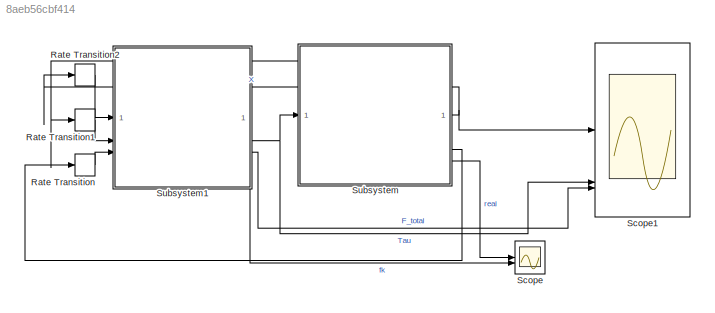
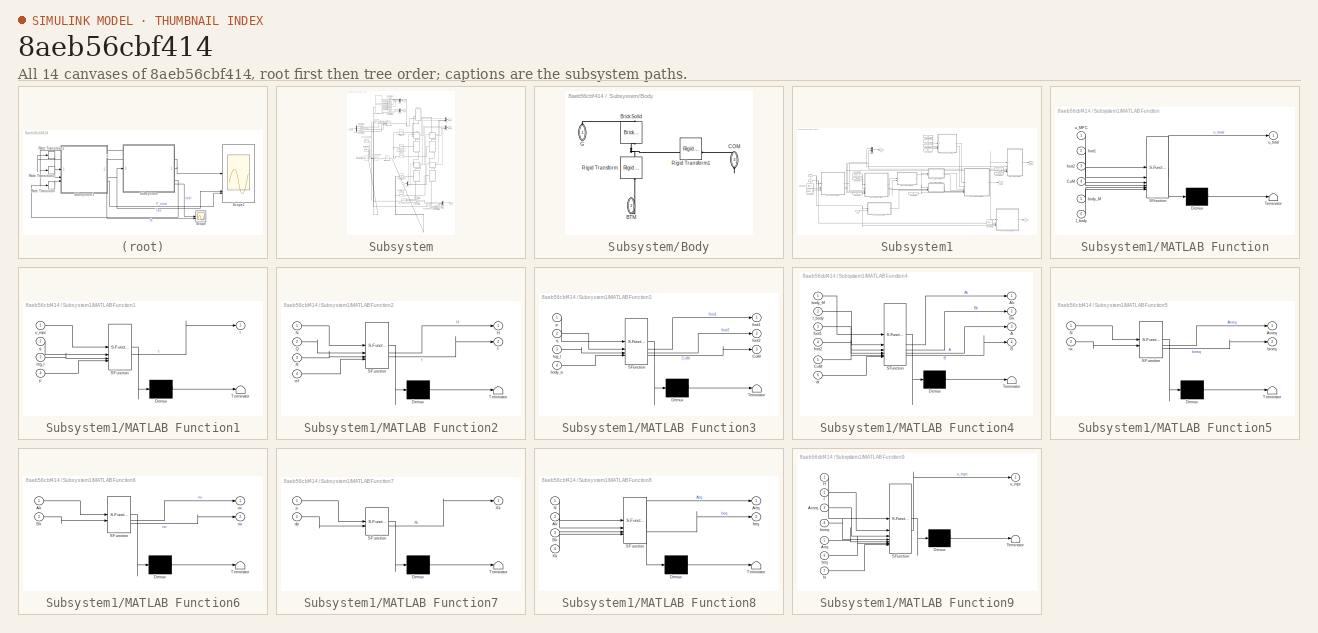
[diagram: thumbnail index - all 14 canvases of the model, root first then tree order]
MODEL slx_8aeb56cbf414
KIND model
CONFIG AbsTol = 1e-3
CONFIG EnableMultiTasking = on
CONFIG FixedStep = 0.04
CONFIG MaxStep = auto
CONFIG MinStep = auto
CONFIG RelTol = 1e-3
CONFIG SampleTimeConstraint = Unconstrained
CONFIG SolverName = VariableStepAuto
CONFIG StartTime = 0.0
CONFIG StopTime = 2
BLOCK [RateTransition] Rate Transition
  OutPortSampleTime = dt
BLOCK [RateTransition] Rate Transition1
  OutPortSampleTime = dt
BLOCK [RateTransition] Rate Transition2
  OutPortSampleTime = dt
BLOCK [Scope] Scope
  Floating = off
  NumInputPorts = 2
  ScopeSpecificationString = Simulink.scopes.TimeScopeBlockCfg('CurrentConfiguration', extmgr.ConfigurationSet(extmgr.Configuration('Core','General UI',true),extmgr.Configuration('Core','Source UI',true),extmgr.Configuration('Sources','WiredSimulink',true,'DataLoggingVariableName','ScopeData1'),extmgr.Configuration('Visuals','Time Domain',true,'SerializedDisplays',{struct('MinYLimReal','-0.02335','MaxYLimReal','0.20561','YLab...<+2210ch>
BLOCK [Scope] Scope1
  Floating = off
  NumInputPorts = 5
  ScopeSpecificationString = Simulink.scopes.TimeScopeBlockCfg('CurrentConfiguration', extmgr.ConfigurationSet(extmgr.Configuration('Core','General UI',true),extmgr.Configuration('Core','Source UI',true),extmgr.Configuration('Sources','WiredSimulink',true,'DataLoggingVariableName','ScopeData1'),extmgr.Configuration('Visuals','Time Domain',true,'SerializedDisplays',{struct('MinYLimReal','-0.06936','MaxYLimReal','0.62351','YLab...<+5929ch>
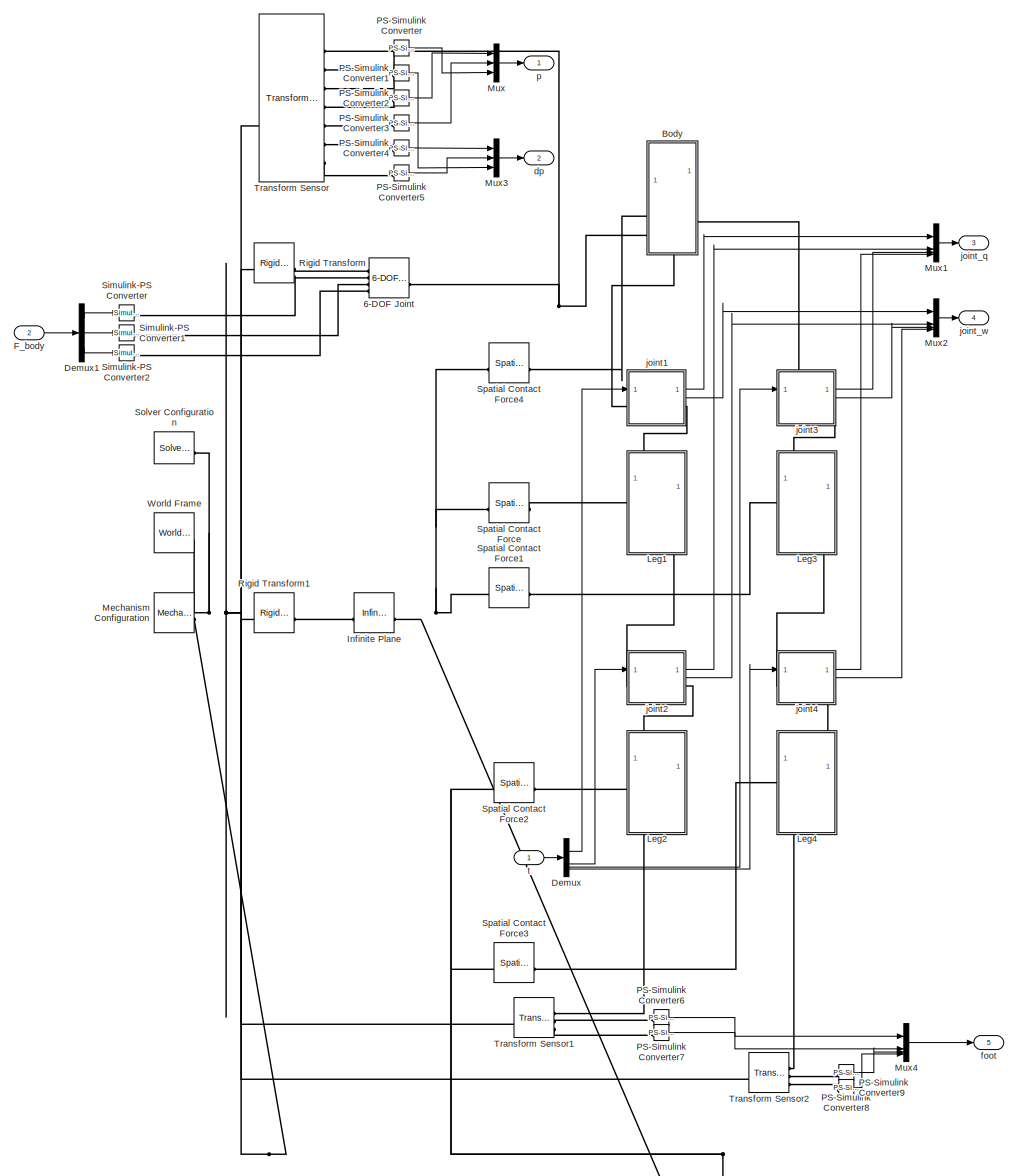
[diagram: Subsystem - part 1/1, most of the canvas]
BLOCK [SubSystem] Subsystem
BLOCK [Reference] Subsystem/6-DOF Joint  REF=sm_lib/Joints/6-DOF Joint
  SourceBlock = sm_lib/Joints/6-DOF Joint
  SourceType = 6-DOF Joint
BLOCK [SubSystem] Subsystem/Body
  PortSchema = {"entries":[{"content":{"sides":[{"content":{"connectorIds":["LConn1"]},"type":"ConnectorPlacement.EquallySpacedRectSide","uuid":"ef732868-a6ed-4fe4-817e-f9b9b43bcca9"},{"content":{"side":"RIGHT"},"type":"ConnectorPlacement.EquallySpacedRectSide","uuid":"7258e0b6-9c16-4231-a684-803b12dc5dbb"},{"content":{"side":"TOP"},"type":"ConnectorPlacement.EquallySpacedRectSide","uuid":"2620e2ed-2a50-4d1a-a22...<+362ch>
BLOCK [PMIOPort] Subsystem/Body/BTM
  NameLocation = left
  Port = 2
  Side = Right
BLOCK [Reference] Subsystem/Body/Brick Solid  REF=sm_lib/Body Elements/Brick Solid
  NameLocation = top
  SourceBlock = sm_lib/Body Elements/Brick Solid
  SourceType = Brick Solid
BLOCK [PMIOPort] Subsystem/Body/COM
  NameLocation = left
  Port = 3
  Side = Right
BLOCK [PMIOPort] Subsystem/Body/G
  NameLocation = left
  Side = Left
BLOCK [Reference] Subsystem/Body/Rigid Transform  REF=sm_lib/Frames and
Transforms/Rigid
Transform
  NameLocation = left
  SourceBlock = sm_lib/Frames and\nTransforms/Rigid\nTransform
  SourceType = Rigid\nTransform
BLOCK [Reference] Subsystem/Body/Rigid Transform1  REF=sm_lib/Frames and
Transforms/Rigid
Transform
  SourceBlock = sm_lib/Frames and\nTransforms/Rigid\nTransform
  SourceType = Rigid\nTransform
BLOCK [Demux] Subsystem/Demux
BLOCK [Demux] Subsystem/Demux1
  Outputs = 3
BLOCK [Inport] Subsystem/F_body
  Port = 2
BLOCK [Reference] Subsystem/Infinite Plane  REF=sm_lib/Curves and Surfaces/Infinite Plane
  SourceBlock = sm_lib/Curves and Surfaces/Infinite Plane
  SourceType = Infinite Plane
BLOCK [SubSystem] Subsystem/Leg1
  B = 0.76
  G = 0.41
  PortSchema = {"entries":[{"content":{"sides":[{"content":{"connectorIds":["LConn1"]},"type":"ConnectorPlacement.EquallySpacedRectSide","uuid":"488f091b-67f3-4641-8360-22ce5240ae7f"},{"content":{"side":"RIGHT"},"type":"ConnectorPlacement.EquallySpacedRectSide","uuid":"4ff6c1cd-91cf-49f0-96c7-c99ee0019842"},{"content":{"connectorIds":["LConn2"],"side":"TOP"},"type":"ConnectorPlacement.EquallySpacedRectSide","uui...<+379ch>  <repeated x4 — deduplicated; at blocks: Leg1, Leg2, Leg3, Leg4>
  R = 0.18
  ReferencedSubsystem = Leg
  l = leg_l
  m = leg_m
BLOCK [SubSystem] Subsystem/Leg2
  B = 0
  G = 0.28
  R = 0.82
  ReferencedSubsystem = Leg
  l = leg_l
  m = leg_m
BLOCK [SubSystem] Subsystem/Leg3
  B = 0.18
  G = 0.64
  R = 0.31
  ReferencedSubsystem = Leg
  l = leg_l
  m = leg_m
BLOCK [SubSystem] Subsystem/Leg4
  B = 0.27
  G = 0.84
  R = 1
  ReferencedSubsystem = Leg
  l = leg_l
  m = leg_m
BLOCK [Reference] Subsystem/Mechanism Configuration  REF=sm_lib/Utilities/Mechanism
Configuration
  SourceBlock = sm_lib/Utilities/Mechanism\nConfiguration
  SourceType = Mechanism\nConfiguration
BLOCK [Mux] Subsystem/Mux
  DisplayOption = bar
  Inputs = 3
BLOCK [Mux] Subsystem/Mux1
  DisplayOption = bar
BLOCK [Mux] Subsystem/Mux2
  DisplayOption = bar
BLOCK [Mux] Subsystem/Mux3
  DisplayOption = bar
  Inputs = 3
BLOCK [Mux] Subsystem/Mux4
  DisplayOption = bar
BLOCK [Reference] Subsystem/PS-Simulink Converter  REF=nesl_utility/PS-Simulink
Converter
  SourceBlock = nesl_utility/PS-Simulink\nConverter
  SourceType = PS-Simulink\nConverter
BLOCK [Reference] Subsystem/PS-Simulink Converter1  REF=nesl_utility/PS-Simulink
Converter
  SourceBlock = nesl_utility/PS-Simulink\nConverter
  SourceType = PS-Simulink\nConverter
BLOCK [Reference] Subsystem/PS-Simulink Converter2  REF=nesl_utility/PS-Simulink
Converter
  SourceBlock = nesl_utility/PS-Simulink\nConverter
  SourceType = PS-Simulink\nConverter
BLOCK [Reference] Subsystem/PS-Simulink Converter3  REF=nesl_utility/PS-Simulink
Converter
  SourceBlock = nesl_utility/PS-Simulink\nConverter
  SourceType = PS-Simulink\nConverter
BLOCK [Reference] Subsystem/PS-Simulink Converter4  REF=nesl_utility/PS-Simulink
Converter
  SourceBlock = nesl_utility/PS-Simulink\nConverter
  SourceType = PS-Simulink\nConverter
BLOCK [Reference] Subsystem/PS-Simulink Converter5  REF=nesl_utility/PS-Simulink
Converter
  SourceBlock = nesl_utility/PS-Simulink\nConverter
  SourceType = PS-Simulink\nConverter
BLOCK [Reference] Subsystem/PS-Simulink Converter6  REF=nesl_utility/PS-Simulink
Converter
  SourceBlock = nesl_utility/PS-Simulink\nConverter
  SourceType = PS-Simulink\nConverter
BLOCK [Reference] Subsystem/PS-Simulink Converter7  REF=nesl_utility/PS-Simulink
Converter
  SourceBlock = nesl_utility/PS-Simulink\nConverter
  SourceType = PS-Simulink\nConverter
BLOCK [Reference] Subsystem/PS-Simulink Converter8  REF=nesl_utility/PS-Simulink
Converter
  SourceBlock = nesl_utility/PS-Simulink\nConverter
  SourceType = PS-Simulink\nConverter
BLOCK [Reference] Subsystem/PS-Simulink Converter9  REF=nesl_utility/PS-Simulink
Converter
  SourceBlock = nesl_utility/PS-Simulink\nConverter
  SourceType = PS-Simulink\nConverter
BLOCK [Reference] Subsystem/Rigid Transform  REF=sm_lib/Frames and
Transforms/Rigid
Transform
  SourceBlock = sm_lib/Frames and\nTransforms/Rigid\nTransform
  SourceType = Rigid\nTransform
BLOCK [Reference] Subsystem/Rigid Transform1  REF=sm_lib/Frames and
Transforms/Rigid
Transform
  SourceBlock = sm_lib/Frames and\nTransforms/Rigid\nTransform
  SourceType = Rigid\nTransform
BLOCK [Reference] Subsystem/Simulink-PS Converter  REF=nesl_utility/Simulink-PS
Converter
  SourceBlock = nesl_utility/Simulink-PS\nConverter
  SourceType = Simulink-PS\nConverter
BLOCK [Reference] Subsystem/Simulink-PS Converter1  REF=nesl_utility/Simulink-PS
Converter
  SourceBlock = nesl_utility/Simulink-PS\nConverter
  SourceType = Simulink-PS\nConverter
BLOCK [Reference] Subsystem/Simulink-PS Converter2  REF=nesl_utility/Simulink-PS
Converter
  SourceBlock = nesl_utility/Simulink-PS\nConverter
  SourceType = Simulink-PS\nConverter
BLOCK [Reference] Subsystem/Solver Configuration  REF=nesl_utility/Solver
Configuration
  SourceBlock = nesl_utility/Solver\nConfiguration
  SourceType = Solver\nConfiguration
BLOCK [Reference] Subsystem/Spatial Contact Force  REF=sm_lib/Forces and
Torques/Spatial
Contact Force
  SourceBlock = sm_lib/Forces and\nTorques/Spatial\nContact Force
  SourceType = Spatial\nContact Force
BLOCK [Reference] Subsystem/Spatial Contact Force1  REF=sm_lib/Forces and
Torques/Spatial
Contact Force
  SourceBlock = sm_lib/Forces and\nTorques/Spatial\nContact Force
  SourceType = Spatial\nContact Force
BLOCK [Reference] Subsystem/Spatial Contact Force2  REF=sm_lib/Forces and
Torques/Spatial
Contact Force
  SourceBlock = sm_lib/Forces and\nTorques/Spatial\nContact Force
  SourceType = Spatial\nContact Force
BLOCK [Reference] Subsystem/Spatial Contact Force3  REF=sm_lib/Forces and
Torques/Spatial
Contact Force
  SourceBlock = sm_lib/Forces and\nTorques/Spatial\nContact Force
  SourceType = Spatial\nContact Force
BLOCK [Reference] Subsystem/Spatial Contact Force4  REF=sm_lib/Forces and
Torques/Spatial
Contact Force
  SourceBlock = sm_lib/Forces and\nTorques/Spatial\nContact Force
  SourceType = Spatial\nContact Force
BLOCK [Reference] Subsystem/Transform Sensor  REF=sm_lib/Frames and
Transforms/Transform
Sensor
  SourceBlock = sm_lib/Frames and\nTransforms/Transform\nSensor
  SourceType = Transform\nSensor
BLOCK [Reference] Subsystem/Transform Sensor1  REF=sm_lib/Frames and
Transforms/Transform
Sensor
  SourceBlock = sm_lib/Frames and\nTransforms/Transform\nSensor
  SourceType = Transform\nSensor
BLOCK [Reference] Subsystem/Transform Sensor2  REF=sm_lib/Frames and
Transforms/Transform
Sensor
  SourceBlock = sm_lib/Frames and\nTransforms/Transform\nSensor
  SourceType = Transform\nSensor
BLOCK [Reference] Subsystem/World Frame  REF=sm_lib/Frames and
Transforms/World Frame
  SourceBlock = sm_lib/Frames and\nTransforms/World Frame
  SourceType = World Frame
BLOCK [Outport] Subsystem/dp
  Port = 2
BLOCK [Outport] Subsystem/foot
  Port = 5
BLOCK [SubSystem] Subsystem/joint1
  ReferencedSubsystem = hip
  q0 = q0(1)
BLOCK [SubSystem] Subsystem/joint2
  ReferencedSubsystem = knee
  q0 = q0(2)
BLOCK [SubSystem] Subsystem/joint3
  ReferencedSubsystem = hip
  q0 = q0(3)
BLOCK [SubSystem] Subsystem/joint4
  ReferencedSubsystem = knee
  q0 = q0(4)
BLOCK [Outport] Subsystem/joint_q
  Port = 3
BLOCK [Outport] Subsystem/joint_w
  Port = 4
BLOCK [Outport] Subsystem/p
BLOCK [Inport] Subsystem/t
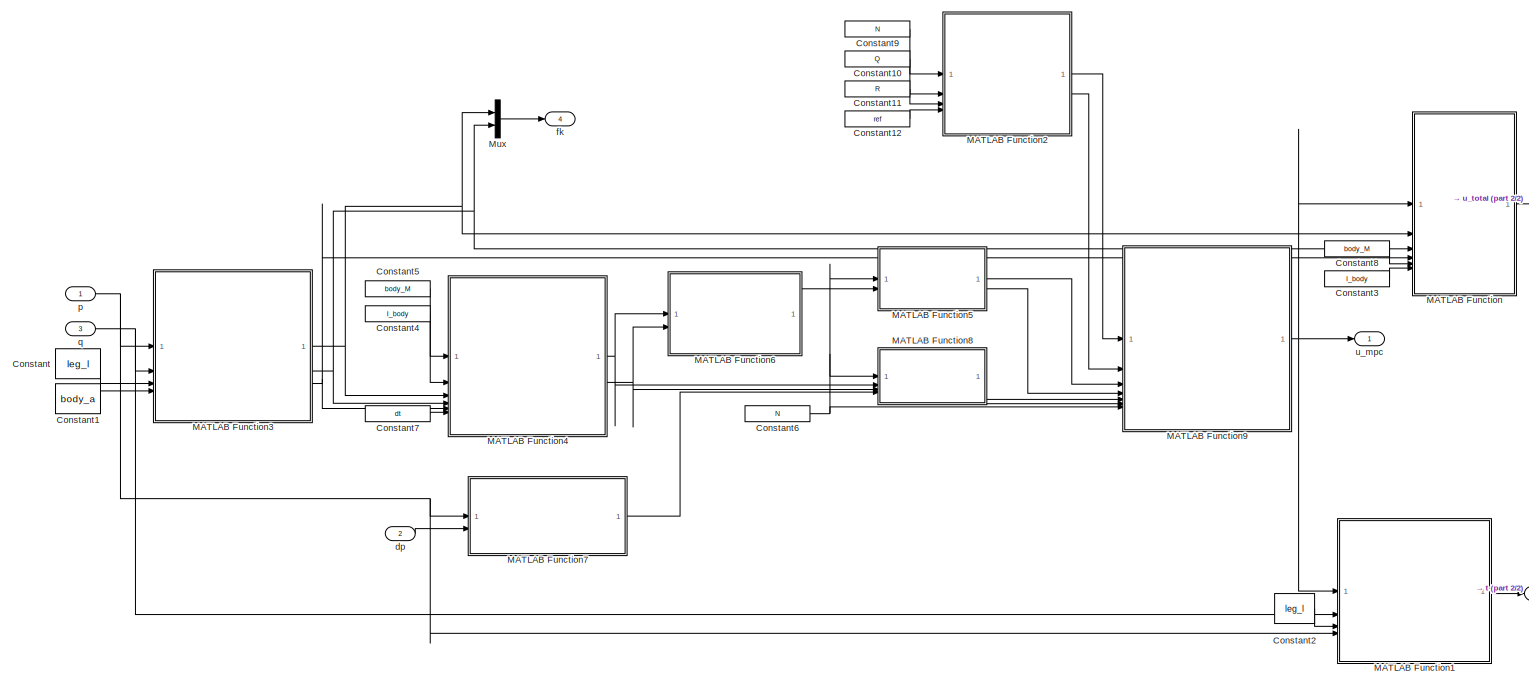
[diagram: Subsystem1 - part 1/2, most of the canvas]
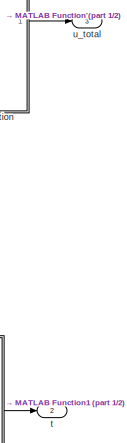
[diagram: Subsystem1 - part 2/2, middle right region]
BLOCK [SubSystem] Subsystem1
BLOCK [Constant] Subsystem1/Constant
  Value = leg_l
BLOCK [Constant] Subsystem1/Constant1
  Value = body_a
BLOCK [Constant] Subsystem1/Constant10
  Value = Q
BLOCK [Constant] Subsystem1/Constant11
  Value = R
BLOCK [Constant] Subsystem1/Constant12
  Value = ref
BLOCK [Constant] Subsystem1/Constant2
  Value = leg_l
BLOCK [Constant] Subsystem1/Constant3
  Value = I_body
BLOCK [Constant] Subsystem1/Constant4
  Value = I_body
BLOCK [Constant] Subsystem1/Constant5
  Value = body_M
BLOCK [Constant] Subsystem1/Constant6
  Value = N
BLOCK [Constant] Subsystem1/Constant7
  Value = dt
BLOCK [Constant] Subsystem1/Constant8
  Value = body_M
BLOCK [Constant] Subsystem1/Constant9
  Value = N
BLOCK [SubSystem] Subsystem1/MATLAB Function
  ErrorFcn = Stateflow.Translate.translate
  PermitHierarchicalResolution = ExplicitOnly
  SFBlockType = MATLAB Function
  TreatAsAtomicUnit = on
BLOCK [Demux] Subsystem1/MATLAB Function/ Demux 
  Outputs = 1
BLOCK [S-Function] Subsystem1/MATLAB Function/ SFunction 
  EnableBusSupport = on
  FunctionName = sf_sfun
  PortCounts = [6 2]
  SFcnIsStateOwnerBlock = off
  SFunctionDeploymentMode = off
  Tag = Stateflow S-Function 2
BLOCK [Terminator] Subsystem1/MATLAB Function/ Terminator 
BLOCK [Inport] Subsystem1/MATLAB Function/CoM
  Port = 4
BLOCK [Inport] Subsystem1/MATLAB Function/I_body
  Port = 6
BLOCK [Inport] Subsystem1/MATLAB Function/body_M
  Port = 5
BLOCK [Inport] Subsystem1/MATLAB Function/foot1
  Port = 2
BLOCK [Inport] Subsystem1/MATLAB Function/foot2
  Port = 3
BLOCK [Inport] Subsystem1/MATLAB Function/u_MPC
BLOCK [Outport] Subsystem1/MATLAB Function/u_total
BLOCK [SubSystem] Subsystem1/MATLAB Function1
  ErrorFcn = Stateflow.Translate.translate
  PermitHierarchicalResolution = ExplicitOnly
  SFBlockType = MATLAB Function
  TreatAsAtomicUnit = on
BLOCK [Demux] Subsystem1/MATLAB Function1/ Demux 
  Outputs = 1
BLOCK [S-Function] Subsystem1/MATLAB Function1/ SFunction 
  EnableBusSupport = on
  FunctionName = sf_sfun
  PortCounts = [4 2]
  SFcnIsStateOwnerBlock = off
  SFunctionDeploymentMode = off
  Tag = Stateflow S-Function 1
BLOCK [Terminator] Subsystem1/MATLAB Function1/ Terminator 
BLOCK [Inport] Subsystem1/MATLAB Function1/leg_l
  Port = 3
BLOCK [Inport] Subsystem1/MATLAB Function1/p
  Port = 4
BLOCK [Inport] Subsystem1/MATLAB Function1/q
  Port = 2
BLOCK [Outport] Subsystem1/MATLAB Function1/t
BLOCK [Inport] Subsystem1/MATLAB Function1/u_mpc
BLOCK [SubSystem] Subsystem1/MATLAB Function2
  ErrorFcn = Stateflow.Translate.translate
  PermitHierarchicalResolution = ExplicitOnly
  SFBlockType = MATLAB Function
  TreatAsAtomicUnit = on
BLOCK [Demux] Subsystem1/MATLAB Function2/ Demux 
  Outputs = 1
BLOCK [S-Function] Subsystem1/MATLAB Function2/ SFunction 
  EnableBusSupport = on
  FunctionName = sf_sfun
  PortCounts = [4 3]
  SFcnIsStateOwnerBlock = off
  SFunctionDeploymentMode = off
  Tag = Stateflow S-Function 3
BLOCK [Terminator] Subsystem1/MATLAB Function2/ Terminator 
BLOCK [Outport] Subsystem1/MATLAB Function2/H
BLOCK [Inport] Subsystem1/MATLAB Function2/N
BLOCK [Inport] Subsystem1/MATLAB Function2/Q
  Port = 2
BLOCK [Inport] Subsystem1/MATLAB Function2/R
  Port = 3
BLOCK [Outport] Subsystem1/MATLAB Function2/f
  Port = 2
BLOCK [Inport] Subsystem1/MATLAB Function2/ref
  Port = 4
BLOCK [SubSystem] Subsystem1/MATLAB Function3
  ErrorFcn = Stateflow.Translate.translate
  PermitHierarchicalResolution = ExplicitOnly
  SFBlockType = MATLAB Function
  TreatAsAtomicUnit = on
BLOCK [Demux] Subsystem1/MATLAB Function3/ Demux 
  Outputs = 1
BLOCK [S-Function] Subsystem1/MATLAB Function3/ SFunction 
  EnableBusSupport = on
  FunctionName = sf_sfun
  PortCounts = [4 4]
  SFcnIsStateOwnerBlock = off
  SFunctionDeploymentMode = off
  Tag = Stateflow S-Function 4
BLOCK [Terminator] Subsystem1/MATLAB Function3/ Terminator 
BLOCK [Outport] Subsystem1/MATLAB Function3/CoM
  Port = 3
BLOCK [Inport] Subsystem1/MATLAB Function3/body_a
  Port = 4
BLOCK [Outport] Subsystem1/MATLAB Function3/foot1
BLOCK [Outport] Subsystem1/MATLAB Function3/foot2
  Port = 2
BLOCK [Inport] Subsystem1/MATLAB Function3/leg_l
  Port = 3
BLOCK [Inport] Subsystem1/MATLAB Function3/p
BLOCK [Inport] Subsystem1/MATLAB Function3/q
  Port = 2
BLOCK [SubSystem] Subsystem1/MATLAB Function4
  ErrorFcn = Stateflow.Translate.translate
  PermitHierarchicalResolution = ExplicitOnly
  SFBlockType = MATLAB Function
  TreatAsAtomicUnit = on
BLOCK [Demux] Subsystem1/MATLAB Function4/ Demux 
  Outputs = 1
BLOCK [S-Function] Subsystem1/MATLAB Function4/ SFunction 
  EnableBusSupport = on
  FunctionName = sf_sfun
  PortCounts = [6 5]
  SFcnIsStateOwnerBlock = off
  SFunctionDeploymentMode = off
  Tag = Stateflow S-Function 5
BLOCK [Terminator] Subsystem1/MATLAB Function4/ Terminator 
BLOCK [Outport] Subsystem1/MATLAB Function4/A
  Port = 3
BLOCK [Outport] Subsystem1/MATLAB Function4/Ak
BLOCK [Outport] Subsystem1/MATLAB Function4/B
  Port = 4
BLOCK [Outport] Subsystem1/MATLAB Function4/Bk
  Port = 2
BLOCK [Inport] Subsystem1/MATLAB Function4/CoM
  Port = 5
BLOCK [Inport] Subsystem1/MATLAB Function4/I_body
  Port = 2
BLOCK [Inport] Subsystem1/MATLAB Function4/body_M
BLOCK [Inport] Subsystem1/MATLAB Function4/dt
  Port = 6
BLOCK [Inport] Subsystem1/MATLAB Function4/foot1
  Port = 3
BLOCK [Inport] Subsystem1/MATLAB Function4/foot2
  Port = 4
BLOCK [SubSystem] Subsystem1/MATLAB Function5
  ErrorFcn = Stateflow.Translate.translate
  PermitHierarchicalResolution = ExplicitOnly
  SFBlockType = MATLAB Function
  TreatAsAtomicUnit = on
BLOCK [Demux] Subsystem1/MATLAB Function5/ Demux 
  Outputs = 1
BLOCK [S-Function] Subsystem1/MATLAB Function5/ SFunction 
  EnableBusSupport = on
  FunctionName = sf_sfun
  PortCounts = [2 3]
  SFcnIsStateOwnerBlock = off
  SFunctionDeploymentMode = off
  Tag = Stateflow S-Function 6
BLOCK [Terminator] Subsystem1/MATLAB Function5/ Terminator 
BLOCK [Outport] Subsystem1/MATLAB Function5/Aineq
BLOCK [Inport] Subsystem1/MATLAB Function5/N
BLOCK [Outport] Subsystem1/MATLAB Function5/bineq
  Port = 2
BLOCK [Inport] Subsystem1/MATLAB Function5/nx
  Port = 2
BLOCK [SubSystem] Subsystem1/MATLAB Function6
  ErrorFcn = Stateflow.Translate.translate
  PermitHierarchicalResolution = ExplicitOnly
  SFBlockType = MATLAB Function
  TreatAsAtomicUnit = on
BLOCK [Demux] Subsystem1/MATLAB Function6/ Demux 
  Outputs = 1
BLOCK [S-Function] Subsystem1/MATLAB Function6/ SFunction 
  EnableBusSupport = on
  FunctionName = sf_sfun
  PortCounts = [2 3]
  SFcnIsStateOwnerBlock = off
  SFunctionDeploymentMode = off
  Tag = Stateflow S-Function 7
BLOCK [Terminator] Subsystem1/MATLAB Function6/ Terminator 
BLOCK [Inport] Subsystem1/MATLAB Function6/Ak
BLOCK [Inport] Subsystem1/MATLAB Function6/Bk
  Port = 2
BLOCK [Outport] Subsystem1/MATLAB Function6/nu
  Port = 2
BLOCK [Outport] Subsystem1/MATLAB Function6/nx
BLOCK [SubSystem] Subsystem1/MATLAB Function7
  ErrorFcn = Stateflow.Translate.translate
  PermitHierarchicalResolution = ExplicitOnly
  SFBlockType = MATLAB Function
  TreatAsAtomicUnit = on
BLOCK [Demux] Subsystem1/MATLAB Function7/ Demux 
  Outputs = 1
BLOCK [S-Function] Subsystem1/MATLAB Function7/ SFunction 
  EnableBusSupport = on
  FunctionName = sf_sfun
  PortCounts = [2 2]
  SFcnIsStateOwnerBlock = off
  SFunctionDeploymentMode = off
  Tag = Stateflow S-Function 8
BLOCK [Terminator] Subsystem1/MATLAB Function7/ Terminator 
BLOCK [Outport] Subsystem1/MATLAB Function7/Xk
BLOCK [Inport] Subsystem1/MATLAB Function7/dp
  Port = 2
BLOCK [Inport] Subsystem1/MATLAB Function7/p
BLOCK [SubSystem] Subsystem1/MATLAB Function8
  ErrorFcn = Stateflow.Translate.translate
  PermitHierarchicalResolution = ExplicitOnly
  SFBlockType = MATLAB Function
  TreatAsAtomicUnit = on
BLOCK [Demux] Subsystem1/MATLAB Function8/ Demux 
  Outputs = 1
BLOCK [S-Function] Subsystem1/MATLAB Function8/ SFunction 
  EnableBusSupport = on
  FunctionName = sf_sfun
  PortCounts = [4 3]
  SFcnIsStateOwnerBlock = off
  SFunctionDeploymentMode = off
  Tag = Stateflow S-Function 10
BLOCK [Terminator] Subsystem1/MATLAB Function8/ Terminator 
BLOCK [Outport] Subsystem1/MATLAB Function8/Aeq
BLOCK [Inport] Subsystem1/MATLAB Function8/Ak
  Port = 2
BLOCK [Inport] Subsystem1/MATLAB Function8/Bk
  Port = 3
BLOCK [Inport] Subsystem1/MATLAB Function8/N
BLOCK [Inport] Subsystem1/MATLAB Function8/Xk
  Port = 4
BLOCK [Outport] Subsystem1/MATLAB Function8/beq
  Port = 2
BLOCK [SubSystem] Subsystem1/MATLAB Function9
  ErrorFcn = Stateflow.Translate.translate
  PermitHierarchicalResolution = ExplicitOnly
  SFBlockType = MATLAB Function
  TreatAsAtomicUnit = on
BLOCK [Demux] Subsystem1/MATLAB Function9/ Demux 
  Outputs = 1
BLOCK [S-Function] Subsystem1/MATLAB Function9/ SFunction 
  EnableBusSupport = on
  FunctionName = sf_sfun
  PortCounts = [7 2]
  SFcnIsStateOwnerBlock = off
  SFunctionDeploymentMode = off
  Tag = Stateflow S-Function 9
BLOCK [Terminator] Subsystem1/MATLAB Function9/ Terminator 
BLOCK [Inport] Subsystem1/MATLAB Function9/Aeq
  Port = 5
BLOCK [Inport] Subsystem1/MATLAB Function9/Aineq
  Port = 3
BLOCK [Inport] Subsystem1/MATLAB Function9/H
BLOCK [Inport] Subsystem1/MATLAB Function9/N
  Port = 7
BLOCK [Inport] Subsystem1/MATLAB Function9/beq
  Port = 6
BLOCK [Inport] Subsystem1/MATLAB Function9/bineq
  Port = 4
BLOCK [Inport] Subsystem1/MATLAB Function9/f
  Port = 2
BLOCK [Outport] Subsystem1/MATLAB Function9/u_mpc
BLOCK [Mux] Subsystem1/Mux
  DisplayOption = bar
  Inputs = 2
BLOCK [Inport] Subsystem1/dp
  Port = 2
BLOCK [Outport] Subsystem1/fk
  Port = 4
BLOCK [Inport] Subsystem1/p
BLOCK [Inport] Subsystem1/q
  Port = 3
BLOCK [Outport] Subsystem1/t
  Port = 2
BLOCK [Outport] Subsystem1/u_mpc
BLOCK [Outport] Subsystem1/u_total
  Port = 3
LINE Rate Transition1:1 -> Subsystem1:2
LINE Rate Transition2:1 -> Subsystem1:1
LINE Rate Transition:1 -> Subsystem1:3
LINE Subsystem/Demux1:1 -> Subsystem/Simulink-PS Converter:1
LINE Subsystem/Demux1:2 -> Subsystem/Simulink-PS Converter1:1
LINE Subsystem/Demux1:3 -> Subsystem/Simulink-PS Converter2:1
LINE Subsystem/Demux:1 -> Subsystem/joint1:1
LINE Subsystem/Demux:2 -> Subsystem/joint2:1
LINE Subsystem/Demux:3 -> Subsystem/joint3:1
LINE Subsystem/Demux:4 -> Subsystem/joint4:1
LINE Subsystem/F_body:1 -> Subsystem/Demux1:1
LINE Subsystem/Mux1:1 -> Subsystem/joint_q:1
LINE Subsystem/Mux2:1 -> Subsystem/joint_w:1
LINE Subsystem/Mux3:1 -> Subsystem/dp:1
LINE Subsystem/Mux4:1 -> Subsystem/foot:1
LINE Subsystem/Mux:1 -> Subsystem/p:1
LINE Subsystem/PS-Simulink Converter1:1 -> Subsystem/Mux3:3
LINE Subsystem/PS-Simulink Converter2:1 -> Subsystem/Mux:1
LINE Subsystem/PS-Simulink Converter3:1 -> Subsystem/Mux:2
LINE Subsystem/PS-Simulink Converter4:1 -> Subsystem/Mux3:1
LINE Subsystem/PS-Simulink Converter5:1 -> Subsystem/Mux3:2
LINE Subsystem/PS-Simulink Converter6:1 -> Subsystem/Mux4:1
LINE Subsystem/PS-Simulink Converter7:1 -> Subsystem/Mux4:2
LINE Subsystem/PS-Simulink Converter8:1 -> Subsystem/Mux4:3
LINE Subsystem/PS-Simulink Converter9:1 -> Subsystem/Mux4:4
LINE Subsystem/PS-Simulink Converter:1 -> Subsystem/Mux:3
LINE Subsystem/joint1:1 -> Subsystem/Mux1:1
LINE Subsystem/joint1:2 -> Subsystem/Mux2:1
LINE Subsystem/joint2:1 -> Subsystem/Mux1:2
LINE Subsystem/joint2:2 -> Subsystem/Mux2:2
LINE Subsystem/joint3:1 -> Subsystem/Mux1:3
LINE Subsystem/joint3:2 -> Subsystem/Mux2:3
LINE Subsystem/joint4:1 -> Subsystem/Mux1:4
LINE Subsystem/joint4:2 -> Subsystem/Mux2:4
LINE Subsystem/t:1 -> Subsystem/Demux:1
LINE Subsystem1/Constant10:1 -> Subsystem1/MATLAB Function2:2
LINE Subsystem1/Constant11:1 -> Subsystem1/MATLAB Function2:3
LINE Subsystem1/Constant12:1 -> Subsystem1/MATLAB Function2:4
LINE Subsystem1/Constant1:1 -> Subsystem1/MATLAB Function3:4
LINE Subsystem1/Constant2:1 -> Subsystem1/MATLAB Function1:3
LINE Subsystem1/Constant3:1 -> Subsystem1/MATLAB Function:6
LINE Subsystem1/Constant4:1 -> Subsystem1/MATLAB Function4:2
LINE Subsystem1/Constant5:1 -> Subsystem1/MATLAB Function4:1
NET Subsystem1/Constant6:1 -> Subsystem1/MATLAB Function5:1, Subsystem1/MATLAB Function8:1, Subsystem1/MATLAB Function9:7
LINE Subsystem1/Constant7:1 -> Subsystem1/MATLAB Function4:6
LINE Subsystem1/Constant8:1 -> Subsystem1/MATLAB Function:5
LINE Subsystem1/Constant9:1 -> Subsystem1/MATLAB Function2:1
LINE Subsystem1/Constant:1 -> Subsystem1/MATLAB Function3:3
LINE Subsystem1/MATLAB Function1:1 -> Subsystem1/t:1
LINE Subsystem1/MATLAB Function2:1 -> Subsystem1/MATLAB Function9:1
LINE Subsystem1/MATLAB Function2:2 -> Subsystem1/MATLAB Function9:2
NET Subsystem1/MATLAB Function3:1 -> Subsystem1/MATLAB Function4:3, Subsystem1/MATLAB Function:2, Subsystem1/Mux:1
NET Subsystem1/MATLAB Function3:2 -> Subsystem1/MATLAB Function4:4, Subsystem1/MATLAB Function:3, Subsystem1/Mux:2
NET Subsystem1/MATLAB Function3:3 -> Subsystem1/MATLAB Function4:5, Subsystem1/MATLAB Function:4
NET Subsystem1/MATLAB Function4:1 -> Subsystem1/MATLAB Function6:1, Subsystem1/MATLAB Function8:2
NET Subsystem1/MATLAB Function4:2 -> Subsystem1/MATLAB Function6:2, Subsystem1/MATLAB Function8:3
LINE Subsystem1/MATLAB Function5:1 -> Subsystem1/MATLAB Function9:3
LINE Subsystem1/MATLAB Function5:2 -> Subsystem1/MATLAB Function9:4
LINE Subsystem1/MATLAB Function6:1 -> Subsystem1/MATLAB Function5:2
LINE Subsystem1/MATLAB Function7:1 -> Subsystem1/MATLAB Function8:4
LINE Subsystem1/MATLAB Function8:1 -> Subsystem1/MATLAB Function9:5
LINE Subsystem1/MATLAB Function8:2 -> Subsystem1/MATLAB Function9:6
NET Subsystem1/MATLAB Function9:1 -> Subsystem1/MATLAB Function1:1, Subsystem1/MATLAB Function:1, Subsystem1/u_mpc:1
LINE Subsystem1/MATLAB Function:1 -> Subsystem1/u_total:1
LINE Subsystem1/Mux:1 -> Subsystem1/fk:1
LINE Subsystem1/dp:1 -> Subsystem1/MATLAB Function7:2
NET Subsystem1/p:1 -> Subsystem1/MATLAB Function1:4, Subsystem1/MATLAB Function3:1, Subsystem1/MATLAB Function7:1
NET Subsystem1/q:1 -> Subsystem1/MATLAB Function1:2, Subsystem1/MATLAB Function3:2
NET Subsystem1:2 -> Scope1:4, Subsystem:1
LINE Subsystem1:3 -> Scope1:5
LINE Subsystem1:4 -> Scope:2
NET Subsystem:1 -> Rate Transition2:1, Scope1:1
LINE Subsystem:2 -> Rate Transition1:1
LINE Subsystem:3 -> Rate Transition:1
LINE Subsystem:5 -> Scope:1
PLINE Subsystem/6-DOF Joint:LConn1 -- Subsystem/Rigid Transform:RConn1
PLINE Subsystem/6-DOF Joint:LConn2 -- Subsystem/Simulink-PS Converter:RConn1
PLINE Subsystem/6-DOF Joint:LConn3 -- Subsystem/Simulink-PS Converter1:RConn1
PLINE Subsystem/6-DOF Joint:LConn4 -- Subsystem/Simulink-PS Converter2:RConn1
PNET net1: Subsystem/6-DOF Joint:RConn1 -- Subsystem/Body:RConn2 -- Subsystem/Transform Sensor:RConn1
PLINE Subsystem/Body/BTM:RConn1 -- Subsystem/Body/Rigid Transform:RConn1
PLINE Subsystem/Body/Brick Solid:LConn1 -- Subsystem/Body/G:RConn1
PNET net2: Subsystem/Body/Brick Solid:RConn1 -- Subsystem/Body/Rigid Transform1:LConn1 -- Subsystem/Body/Rigid Transform:LConn1
PLINE Subsystem/Body/COM:RConn1 -- Subsystem/Body/Rigid Transform1:RConn1
PLINE Subsystem/Body:LConn1 -- Subsystem/Spatial Contact Force4:RConn1
PNET net3: Subsystem/Body:RConn1 -- Subsystem/joint1:LConn1 -- Subsystem/joint3:LConn1
PLINE Subsystem/Infinite Plane:LConn1 -- Subsystem/Rigid Transform1:RConn1
PNET net4: Subsystem/Infinite Plane:RConn1 -- Subsystem/Spatial Contact Force1:LConn1 -- Subsystem/Spatial Contact Force2:LConn1 -- Subsystem/Spatial Contact Force3:LConn1 -- Subsystem/Spatial Contact Force4:LConn1 -- Subsystem/Spatial Contact Force:LConn1
PLINE Subsystem/Leg1:LConn1 -- Subsystem/Spatial Contact Force:RConn1
PLINE Subsystem/Leg1:LConn2 -- Subsystem/joint1:RConn1
PLINE Subsystem/Leg1:RConn1 -- Subsystem/joint2:LConn1
PLINE Subsystem/Leg2:LConn1 -- Subsystem/Spatial Contact Force2:RConn1
PLINE Subsystem/Leg2:LConn2 -- Subsystem/joint2:RConn1
PLINE Subsystem/Leg2:RConn1 -- Subsystem/Transform Sensor1:RConn1
PLINE Subsystem/Leg3:LConn1 -- Subsystem/Spatial Contact Force1:RConn1
PLINE Subsystem/Leg3:LConn2 -- Subsystem/joint3:RConn1
PLINE Subsystem/Leg3:RConn1 -- Subsystem/joint4:LConn1
PLINE Subsystem/Leg4:LConn1 -- Subsystem/Spatial Contact Force3:RConn1
PLINE Subsystem/Leg4:LConn2 -- Subsystem/joint4:RConn1
PLINE Subsystem/Leg4:RConn1 -- Subsystem/Transform Sensor2:RConn1
PNET net5: Subsystem/Mechanism Configuration:RConn1 -- Subsystem/Rigid Transform1:LConn1 -- Subsystem/Rigid Transform:LConn1 -- Subsystem/Solver Configuration:RConn1 -- Subsystem/Transform Sensor1:LConn1 -- Subsystem/Transform Sensor2:LConn1 -- Subsystem/Transform Sensor:LConn1 -- Subsystem/World Frame:RConn1
PLINE Subsystem/PS-Simulink Converter1:LConn1 -- Subsystem/Transform Sensor:RConn3
PLINE Subsystem/PS-Simulink Converter2:LConn1 -- Subsystem/Transform Sensor:RConn4
PLINE Subsystem/PS-Simulink Converter3:LConn1 -- Subsystem/Transform Sensor:RConn5
PLINE Subsystem/PS-Simulink Converter4:LConn1 -- Subsystem/Transform Sensor:RConn6
PLINE Subsystem/PS-Simulink Converter5:LConn1 -- Subsystem/Transform Sensor:RConn7
PLINE Subsystem/PS-Simulink Converter6:LConn1 -- Subsystem/Transform Sensor1:RConn2
PLINE Subsystem/PS-Simulink Converter7:LConn1 -- Subsystem/Transform Sensor1:RConn3
PLINE Subsystem/PS-Simulink Converter8:LConn1 -- Subsystem/Transform Sensor2:RConn2
PLINE Subsystem/PS-Simulink Converter9:LConn1 -- Subsystem/Transform Sensor2:RConn3
PLINE Subsystem/PS-Simulink Converter:LConn1 -- Subsystem/Transform Sensor:RConn2
note: NET lines group one-source signal fan-out (src -> all destinations, sorted); 1:1 wires keep LINE; PNET lines group multi-terminal physical nets as a canonical sorted terminal list (undirected conserving connections); 2-terminal nets keep the pairwise PLINE form
CHART Subsystem1/MATLAB Function7 states=1 transitions=1
  STATE_LABEL 'eML_blk_kernel()'
  STATE_LABEL 'SCRIPT:\nfunction Xk = get_Xk(p, dp)\n\ng = 9.81;\n\nx = p(1); \ny = p(2); \ntheta = p(3); \n\nvx = dp(1);\nvy = dp(2); \nomega = dp(3);\n\nXk = [x; y; theta; vx; vy; omega; g];\n\nend'
CHART Subsystem1/MATLAB Function9 states=1 transitions=1
  STATE_LABEL 'eML_blk_kernel()'
  STATE_LABEL "SCRIPT:\nfunction u_mpc = MPC(H ,f, Aineq, bineq, Aeq, beq, N)\n\n% paramters\nnx = 7; \nnu = 4; \n\n% X0\nX0 = zeros((nx + nu) * N, 1); \n\n% quadprog\noptions = optimoptions('quadprog', 'Algorithm', 'active-set', 'Display', 'none');\nX_star = quadprog(H, f, Aineq, bineq, Aeq, beq, [], [], X0, options);\n\n% 提取结果\nU_pred = X_star(N*nx+1:end);   % 预测的未来 N 步输入\nu_mpc = U_pred(1:nu);             % 当前优化的第一个输入\n\nend\n\n...<+3ch>"
CHART Subsystem1/MATLAB Function8 states=1 transitions=1
  STATE_LABEL 'eML_blk_kernel()'
  STATE_LABEL 'SCRIPT:\nfunction [Aeq, beq] = eq(N, Ak, Bk, Xk)\n\n    nx = size(Ak,1);\n    \n    % Define equality constraints\n    Aeq_state = kron(eye(N), eye(nx)) + kron(diag(ones(N-1, 1), -1), -Ak);\n    Aeq_input = kron(eye(N), -Bk);\n    Aeq = [Aeq_state, Aeq_input];\n    beq = [Ak * Xk; zeros(nx * (N - 1), 1)];\n\nend'
CHART Subsystem1/MATLAB Function1 states=1 transitions=1
  STATE_LABEL 'eML_blk_kernel()'
  STATE_LABEL 'SCRIPT:\nfunction t = ifk(u_mpc, q, leg_l, p)\n    \n    % 提取关节角度\n    q1 = q(1);\n    q2 = q(2);\n    q3 = q(3);\n    q4 = q(4);\n    theta = p(3);\n\n    % 创建 world frame 到 body frame 的旋转矩阵\n    R_world_to_body = [cos(theta), sin(theta);\n                      -sin(theta), cos(theta)];\n\n    % 将支撑力 u_qp 转换到 body frame\n    u_body = zeros(size(u_mpc));\n    u_body(1:2) = R_world_to_body * u_mpc(1:2);  % 第一个腿的支撑...<+619ch>'
CHART Subsystem1/MATLAB Function states=1 transitions=1
  STATE_LABEL 'eML_blk_kernel()'
  STATE_LABEL 'SCRIPT:\nfunction u_total = totalforce(u_MPC, foot1, foot2, CoM, body_M, I_body)\nf1x = u_MPC(1);\nf1y = u_MPC(2);\nf2x = u_MPC(3);\nf2y = u_MPC(4);\n\n% 提取位置参数\nx1 = foot1(1); y1 = foot1(2);\nx2 = foot2(1); y2 = foot2(2);\nxc = CoM(1); yc = CoM(2);\n\nfx_total = f1x+f2x;\nfy_total = f1y+f2y;\nt_total = -f1x*(y1-yc)+f1y*(x1-xc)-f2x*(y2-yc)+f2y*(x2-xc);\n\nu_total = [fx_total;fy_total;t_total];\nend\n'
CHART Subsystem1/MATLAB Function2 states=1 transitions=1
  STATE_LABEL 'eML_blk_kernel()'
  STATE_LABEL 'SCRIPT:\nfunction [H, f] = cost_function(N, Q, R, ref)\n   \n    H = blkdiag(kron(eye(N), Q), kron(eye(N), R)); \n\n    f_state = repmat(-2 * Q * ref, N, 1);\n    f_input = repmat([0; 0; 0; 0], N, 1); \n    f = [f_state; f_input]; \nend'
CHART Subsystem1/MATLAB Function3 states=1 transitions=1
  STATE_LABEL 'eML_blk_kernel()'
  STATE_LABEL 'SCRIPT:\nfunction [foot1, foot2, CoM] = fk(p, q, leg_l, body_a)\n    \n    x = p(1);\n    y = p(2);\n    theta = p(3);\n\n    % in body frame\n    x1 = leg_l * sin(q(1)) + leg_l * sin(q(1) + q(2));\n    y1 = -leg_l * cos(q(1)) - leg_l * cos(q(1) + q(2)) - body_a/2;\n    x2 = leg_l * sin(q(3)) + leg_l * sin(q(3) + q(4));\n    y2 = -leg_l * cos(q(3)) - leg_l * cos(q(3) + q(4)) - body_a/2;\n    foot1_body = [x1;...<+213ch>'
CHART Subsystem1/MATLAB Function4 states=1 transitions=1
  STATE_LABEL 'eML_blk_kernel()'
  STATE_LABEL 'SCRIPT:\nfunction [Ak, Bk, A, B] = dynamics(body_M, I_body, foot1, foot2, CoM, dt)\n\nx1 = foot1(1); y1 = foot1(2);\nx2 = foot2(1); y2 = foot2(2);\nxc = CoM(1); yc = CoM(2);\n\ng = 9.81; \n\nI_world = I_body; % only for 2D \n\n% Act\nA = zeros(7,7);\nA(1,4) = 1; \nA(2,5) = 1;\nA(3,6) = 1; \nA(5,7) = -1; \n\n% Bct\nB = zeros(7,4);\nB(4,1) = 1 / body_M; % Fx1 \nB(4,3) = 1 / body_M; % Fx2 \nB(5,2) = 1 / body_M; % Fy1 \nB(5...<+235ch>'
CHART Subsystem1/MATLAB Function5 states=1 transitions=1
  STATE_LABEL 'eML_blk_kernel()'
  STATE_LABEL 'SCRIPT:\nfunction [Aineq, bineq] = ineq(N, nx)\n\n    mu = 0.7;\n    \n    Aineq_state = zeros(nx, nx); \n    bineq_state = zeros(nx, 1);  \n    \n    Aineq_input = [\n        0,  1,  0,  0;   % F1y ≤ 250\n        0, -1,  0,  0;   % -F1y ≤ -10\n        0,  0,  0,  1;   % F2y ≤ 250\n        0,  0,  0, -1;   % -F2y ≤ -10\n        1, -mu, 0,  0;   % F1x ≤ μ * F1y\n       -1, -mu, 0,  0;   % F1x ≥ -μ * F1y\n        ...<+301ch>'
CHART Subsystem1/MATLAB Function6 states=1 transitions=1
  STATE_LABEL 'eML_blk_kernel()'
  STATE_LABEL 'SCRIPT:\nfunction [nx, nu] = get_dimention(Ak, Bk)\n\n    nx = size(Ak,1);\n    nu = size(Bk,2);\n\nend\n'
CHART  states=0 transitions=0
CHART  states=0 transitions=0
CHART  states=0 transitions=0
CHART  states=0 transitions=0
CHART  states=0 transitions=0
CHART  states=0 transitions=0
CHART  states=0 transitions=0
CHART  states=0 transitions=0
CHART  states=0 transitions=0
CHART  states=0 transitions=0
